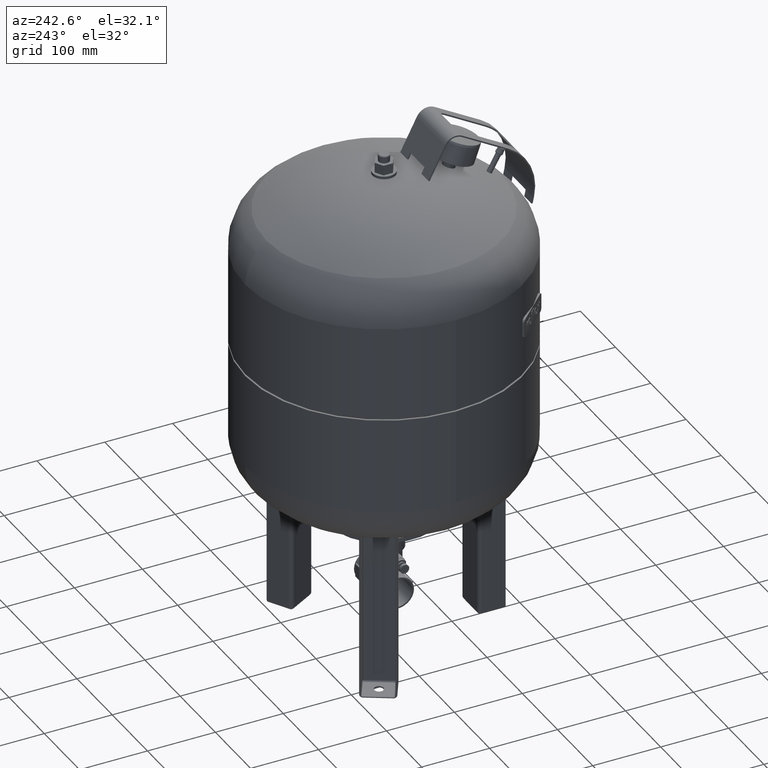
[diagram: clean part render]
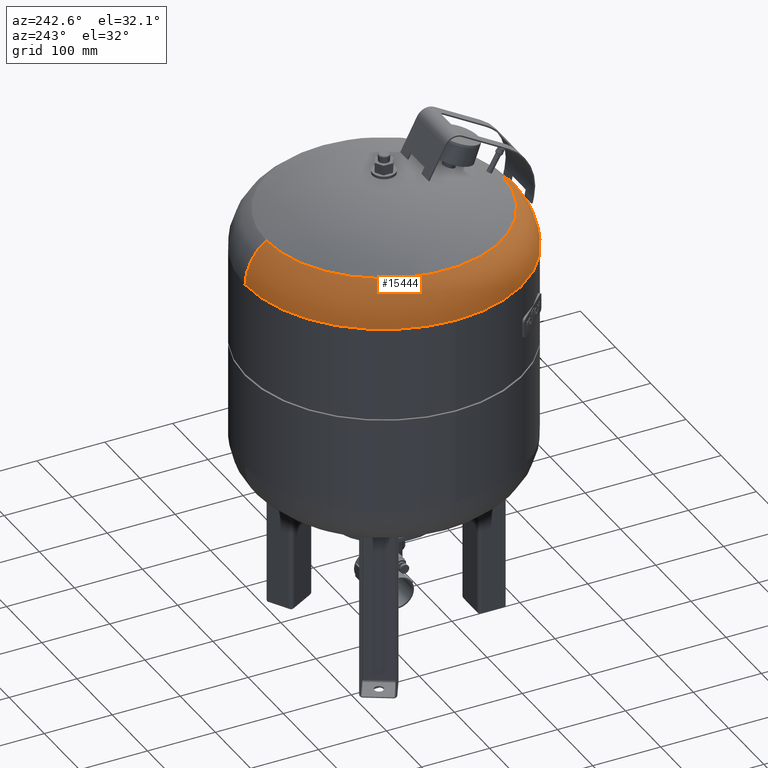
[diagram: same view with one face highlighted and labeled with its STEP entity id]
A machine part, auxiliary view. The second image highlights one B-rep face of the part: STEP entity #15444.
In plain terms, the highlighted toroidal blend (fillet) surface has major radius 132 mm and minor (blend) radius 72.5 mm.
Its self-contained STEP definition (entity closure, byte-faithful):
#15330=CARTESIAN_POINT('',(-204.500000000000030,2.519948E-014,592.850736659031900));
#15331=VERTEX_POINT('',#15330);
#15338=CARTESIAN_POINT('',(6.991514E-015,204.500000000000000,592.850736659031900));
#15339=VERTEX_POINT('',#15338);
#15340=CARTESIAN_POINT('',(-1.400938E-014,1.562778E-016,592.850736659031900));
#15341=DIRECTION('',(0.0,0.0,-1.0));
#15342=DIRECTION('',(1.0,0.0,0.0));
#15343=AXIS2_PLACEMENT_3D('',#15340,#15341,#15342);
#15344=CIRCLE('',#15343,204.500000000000000);
#15345=EDGE_CURVE('',#15331,#15339,#15344,.T.);
#15362=CARTESIAN_POINT('',(-1.805169E-014,-204.500000000000000,592.850736659031900));
#15363=VERTEX_POINT('',#15362);
#15364=CARTESIAN_POINT('',(-1.288327E-014,-173.608695652173960,652.222164518944170));
#15365=VERTEX_POINT('',#15364);
#15366=CARTESIAN_POINT('',(-1.805169E-014,-132.000000000000060,592.850736659031900));
#15367=DIRECTION('',(-1.0,0.0,0.0));
#15368=DIRECTION('',(0.0,-1.0,0.0));
#15369=AXIS2_PLACEMENT_3D('',#15366,#15367,#15368);
#15370=CIRCLE('',#15369,72.500000000000000);
#15371=EDGE_CURVE('',#15363,#15365,#15370,.T.);
#15381=CARTESIAN_POINT('',(8.376960E-015,173.608695652173960,652.222164518944170));
#15382=VERTEX_POINT('',#15381);
#15383=CARTESIAN_POINT('',(-1.886882E-015,132.000000000000060,592.850736659031900));
#15384=DIRECTION('',(1.0,0.0,0.0));
#15385=DIRECTION('',(0.0,1.0,0.0));
#15386=AXIS2_PLACEMENT_3D('',#15383,#15384,#15385);
#15387=CIRCLE('',#15386,72.500000000000000);
#15388=EDGE_CURVE('',#15339,#15382,#15387,.T.);
#15416=CARTESIAN_POINT('',(-8.840965E-015,1.106263E-014,652.222164518944170));
#15417=DIRECTION('',(0.0,0.0,-1.0));
#15418=DIRECTION('',(1.0,0.0,0.0));
#15419=AXIS2_PLACEMENT_3D('',#15416,#15417,#15418);
#15420=CIRCLE('',#15419,173.608695652173960);
#15421=EDGE_CURVE('',#15365,#15382,#15420,.T.);
#15426=CARTESIAN_POINT('',(-1.805169E-014,1.562778E-016,592.850736659031900));
#15427=DIRECTION('',(-8.705222E-017,-1.836970E-016,-1.0));
#15428=DIRECTION('',(0.0,-1.0,0.0));
#15429=AXIS2_PLACEMENT_3D('',#15426,#15427,#15428);
#15430=TOROIDAL_SURFACE('',#15429,132.000000000000060,72.500000000000000);
#15431=ORIENTED_EDGE('',*,*,#15371,.T.);
#15432=ORIENTED_EDGE('',*,*,#15421,.T.);
#15433=ORIENTED_EDGE('',*,*,#15388,.F.);
#15434=ORIENTED_EDGE('',*,*,#15345,.F.);
#15435=CARTESIAN_POINT('',(-1.400938E-014,1.562778E-016,592.850736659031900));
#15436=DIRECTION('',(0.0,0.0,-1.0));
#15437=DIRECTION('',(1.0,0.0,0.0));
#15438=AXIS2_PLACEMENT_3D('',#15435,#15436,#15437);
#15439=CIRCLE('',#15438,204.500000000000000);
#15440=EDGE_CURVE('',#15363,#15331,#15439,.T.);
#15441=ORIENTED_EDGE('',*,*,#15440,.F.);
#15442=EDGE_LOOP('',(#15431,#15432,#15433,#15434,#15441));
#15443=FACE_OUTER_BOUND('',#15442,.T.);
#15444=ADVANCED_FACE('',(#15443),#15430,.T.);